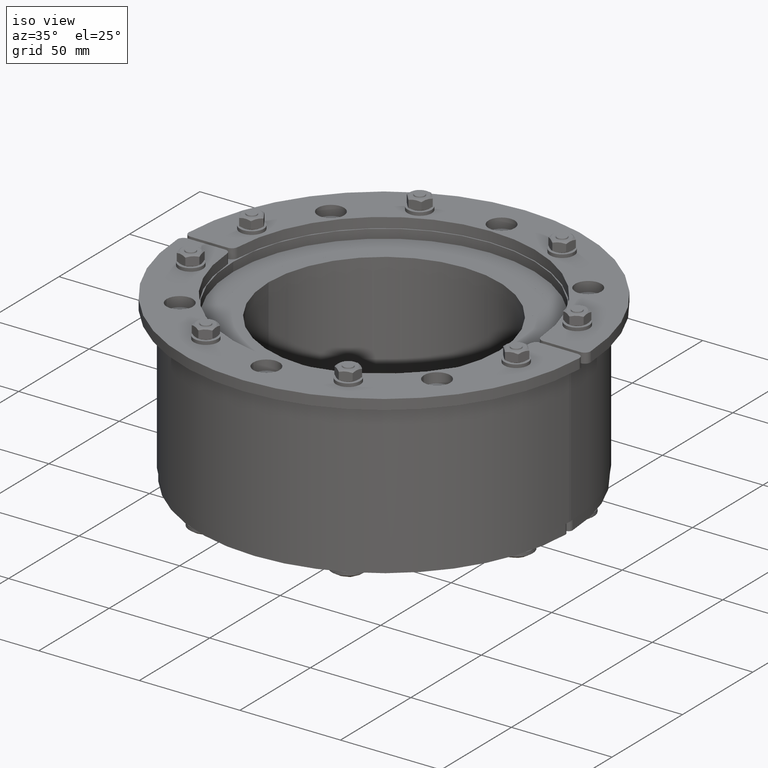
[diagram: clean part render]
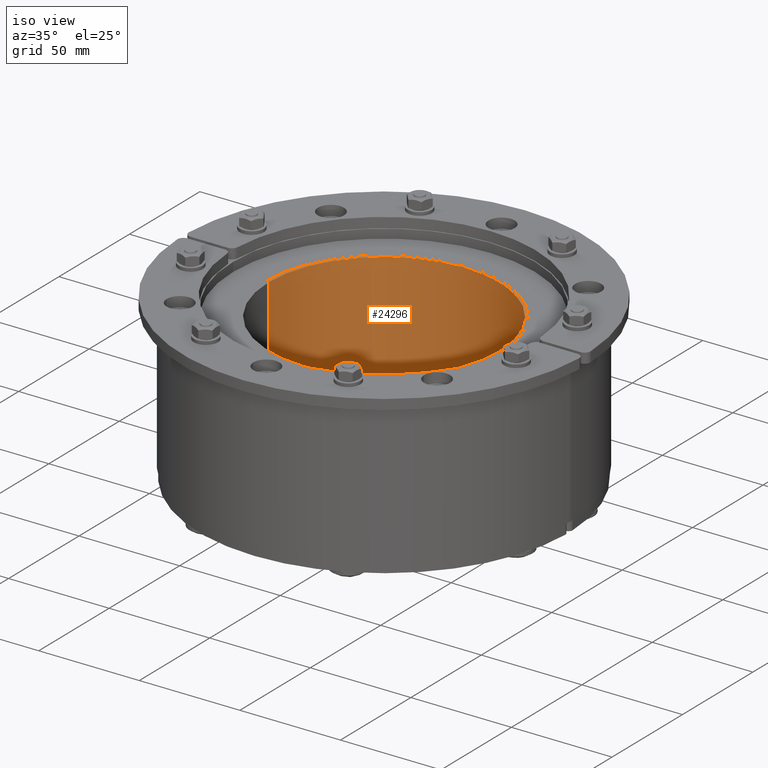
[diagram: same view with one face highlighted and labeled with its STEP entity id]
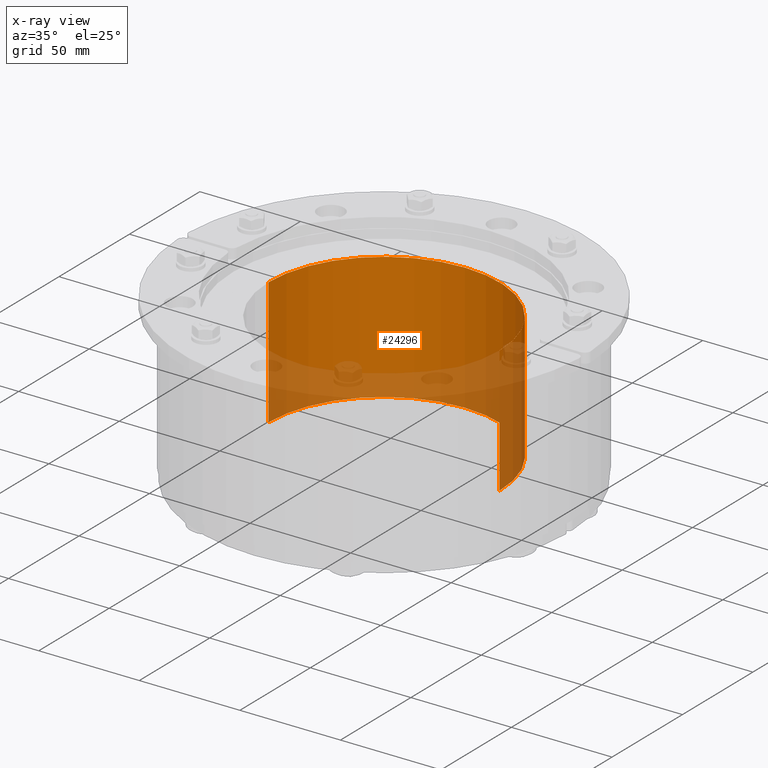
[diagram: x-ray of the same camera — body ghosted, the highlighted face saturated]
A machine part, iso view. The second image highlights one B-rep face of the part: STEP entity #24296.
The next image is the same camera in x-ray: the body ghosted, the highlighted face saturated — about 33% of this face is hidden behind the body in this view.
In plain terms, the highlighted cylindrical surface (partial cylindrical patch) has radius 57.4 mm, axis along (0, -0, -1).
Its self-contained STEP definition (entity closure, byte-faithful):
#24238=CARTESIAN_POINT('',(57.400000000000006,0.0,0.0));
#24239=VERTEX_POINT('',#24238);
#24247=CARTESIAN_POINT('',(57.400000000000006,0.0,63.000000000000007));
#24248=VERTEX_POINT('',#24247);
#24255=CARTESIAN_POINT('',(57.400000000000006,0.0,0.0));
#24256=DIRECTION('',(0.0,0.0,1.0));
#24257=VECTOR('',#24256,63.000000000000007);
#24258=LINE('',#24255,#24257);
#24259=EDGE_CURVE('',#24239,#24248,#24258,.T.);
#24264=CARTESIAN_POINT('',(0.0,0.0,0.0));
#24265=DIRECTION('',(0.0,0.0,1.0));
#24266=DIRECTION('',(-1.0,0.0,0.0));
#24267=AXIS2_PLACEMENT_3D('',#24264,#24265,#24266);
#24268=CYLINDRICAL_SURFACE('',#24267,57.400000000000006);
#24269=CARTESIAN_POINT('',(-57.400000000000006,0.0,0.0));
#24270=VERTEX_POINT('',#24269);
#24271=CARTESIAN_POINT('',(0.0,0.0,0.0));
#24272=DIRECTION('',(0.0,0.0,-1.0));
#24273=DIRECTION('',(-1.0,0.0,0.0));
#24274=AXIS2_PLACEMENT_3D('',#24271,#24272,#24273);
#24275=CIRCLE('',#24274,57.400000000000006);
#24276=EDGE_CURVE('',#24270,#24239,#24275,.T.);
#24277=ORIENTED_EDGE('',*,*,#24276,.T.);
#24278=ORIENTED_EDGE('',*,*,#24259,.T.);
#24279=CARTESIAN_POINT('',(-57.400000000000006,0.0,63.000000000000007));
#24280=VERTEX_POINT('',#24279);
#24281=CARTESIAN_POINT('',(0.0,0.0,63.000000000000007));
#24282=DIRECTION('',(0.0,0.0,-1.0));
#24283=DIRECTION('',(-1.0,0.0,0.0));
#24284=AXIS2_PLACEMENT_3D('',#24281,#24282,#24283);
#24285=CIRCLE('',#24284,57.400000000000006);
#24286=EDGE_CURVE('',#24280,#24248,#24285,.T.);
#24287=ORIENTED_EDGE('',*,*,#24286,.F.);
#24288=CARTESIAN_POINT('',(-57.400000000000006,0.0,0.0));
#24289=DIRECTION('',(0.0,0.0,1.0));
#24290=VECTOR('',#24289,63.000000000000007);
#24291=LINE('',#24288,#24290);
#24292=EDGE_CURVE('',#24270,#24280,#24291,.T.);
#24293=ORIENTED_EDGE('',*,*,#24292,.F.);
#24294=EDGE_LOOP('',(#24277,#24278,#24287,#24293));
#24295=FACE_OUTER_BOUND('',#24294,.T.);
#24296=ADVANCED_FACE('',(#24295),#24268,.F.);